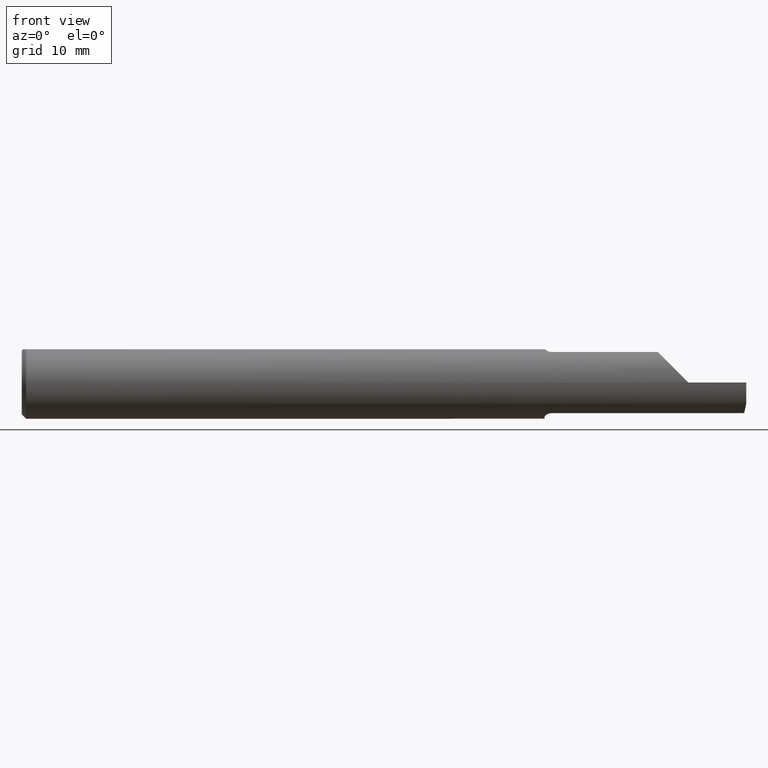
[diagram: clean part render]
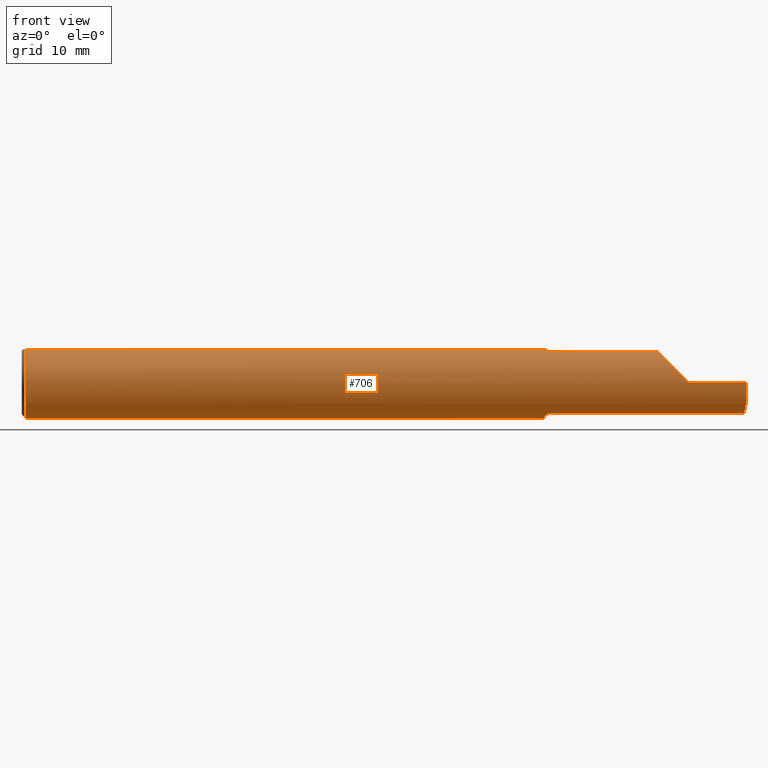
[diagram: same view with one face highlighted and labeled with its STEP entity id]
A machine part, front view. The second image highlights one B-rep face of the part: STEP entity #706.
In plain terms, the highlighted cylindrical surface (edge-blend (fillet) strip) has radius 3.1712 mm, axis along (-1, -0, -0).
Its self-contained STEP definition (entity closure, byte-faithful):
#10 = CARTESIAN_POINT ( 'NONE',  ( 0.01499999999999915637, 0.000000000000000000, 0.000000000000000000 ) ) ;
#26 = CARTESIAN_POINT ( 'NONE',  ( 1.811931173230983072, -0.05931078277131181242, -0.1099137017871685551 ) ) ;
#28 = VERTEX_POINT ( 'NONE', #206 ) ;
#36 = DIRECTION ( 'NONE',  ( -1.000000000000000000, -0.000000000000000000, -0.000000000000000000 ) ) ;
#47 = VERTEX_POINT ( 'NONE', #351 ) ;
#68 = CARTESIAN_POINT ( 'NONE',  ( 0.01499999999999915637, 0.000000000000000000, -0.1248500000000000026 ) ) ;
#77 = CARTESIAN_POINT ( 'NONE',  ( 2.500000000000000000, -0.1027548813330047828, -0.07091513845604555111 ) ) ;
#94 = CARTESIAN_POINT ( 'NONE',  ( 1.806165089549962355, -0.04895916665957456698, 0.1148500000000000076 ) ) ;
#96 = CARTESIAN_POINT ( 'NONE',  ( 2.300000000000000266, -0.1248495094103296982, 0.0003500000000000749148 ) ) ;
#97 = B_SPLINE_CURVE_WITH_KNOTS ( 'NONE', 3,
 ( #348, #614, #283, #752, #226, #94 ),
 .UNSPECIFIED., .F., .F.,
 ( 4, 2, 4 ),
 ( 0.000000000000000000, 0.0004112572997248626011, 0.0008225145994497252023 ),
 .UNSPECIFIED. ) ;
#98 = EDGE_CURVE ( 'NONE', #719, #339, #579, .T. ) ;
#99 = VERTEX_POINT ( 'NONE', #754 ) ;
#112 = EDGE_CURVE ( 'NONE', #99, #339, #204, .T. ) ;
#121 = ORIENTED_EDGE ( 'NONE', *, *, #112, .F. ) ;
#137 = DIRECTION ( 'NONE',  ( 1.000000000000000000, 0.000000000000000000, 0.000000000000000000 ) ) ;
#146 = CIRCLE ( 'NONE', #560, 0.1248500000000000026 ) ;
#148 = CARTESIAN_POINT ( 'NONE',  ( 1.806165089549962355, -0.04895916665957456698, 0.1148500000000000076 ) ) ;
#156 = DIRECTION ( 'NONE',  ( -1.000000000000000000, -0.000000000000000000, -0.000000000000000000 ) ) ;
#158 = CARTESIAN_POINT ( 'NONE',  ( 0.01499999999999915637, 0.04895916665957456698, 0.1148500000000000076 ) ) ;
#165 = CARTESIAN_POINT ( 'NONE',  ( 2.218168021404921753, -0.1036236216557786111, 0.08218197859507844760 ) ) ;
#167 = EDGE_CURVE ( 'NONE', #443, #47, #428, .T. ) ;
#172 = CARTESIAN_POINT ( 'NONE',  ( 1.829000000000000181, -0.06674575881451197401, -0.1055107870327721270 ) ) ;
#173 = AXIS2_PLACEMENT_3D ( 'NONE', #831, #369, #363 ) ;
#174 = CIRCLE ( 'NONE', #173, 0.1248500000000000026 ) ;
#178 = VERTEX_POINT ( 'NONE', #503 ) ;
#180 = ORIENTED_EDGE ( 'NONE', *, *, #527, .F. ) ;
#181 = LINE ( 'NONE', #778, #757 ) ;
#204 = CIRCLE ( 'NONE', #584, 0.1248500000000000026 ) ;
#206 = CARTESIAN_POINT ( 'NONE',  ( 2.194839212967228281, -0.06674575881451201564, 0.1055107870327720992 ) ) ;
#215 = EDGE_CURVE ( 'NONE', #730, #443, #146, .T. ) ;
#218 = CARTESIAN_POINT ( 'NONE',  ( 0.01499999999999914770, -0.04895916665957456698, 0.1148500000000000076 ) ) ;
#226 = CARTESIAN_POINT ( 'NONE',  ( 1.807833696467887163, -0.05373531148618881231, 0.1128139871958513674 ) ) ;
#228 = DIRECTION ( 'NONE',  ( 1.000000000000000000, 0.000000000000000000, 0.000000000000000000 ) ) ;
#230 = LINE ( 'NONE', #703, #744 ) ;
#238 = EDGE_CURVE ( 'NONE', #320, #730, #174, .T. ) ;
#239 = CARTESIAN_POINT ( 'NONE',  ( 1.821166109659049681, -0.06565312228625852509, -0.1062163489814185457 ) ) ;
#244 = ORIENTED_EDGE ( 'NONE', *, *, #574, .T. ) ;
#248 = DIRECTION ( 'NONE',  ( -1.000000000000000000, -0.000000000000000000, -0.000000000000000000 ) ) ;
#255 = CARTESIAN_POINT ( 'NONE',  ( 2.500000000000000000, -0.06674575881451198789, -0.1055107870327721270 ) ) ;
#258 = CARTESIAN_POINT ( 'NONE',  ( 2.492585572526551108, -0.06674575881451198789, -0.1055107870327721270 ) ) ;
#259 = EDGE_CURVE ( 'NONE', #178, #461, #683, .T. ) ;
#260 = B_SPLINE_CURVE_WITH_KNOTS ( 'NONE', 3,
 ( #303, #833, #570, #26, #299, #239, #361, #775 ),
 .UNSPECIFIED., .F., .F.,
 ( 4, 2, 2, 4 ),
 ( 0.000000000000000000, 0.0005958128942917653497, 0.0008937193414376426578, 0.001191625788583520074 ),
 .UNSPECIFIED. ) ;
#262 = CIRCLE ( 'NONE', #771, 0.1248500000000000026 ) ;
#268 = VERTEX_POINT ( 'NONE', #465 ) ;
#269 = CARTESIAN_POINT ( 'NONE',  ( 2.492585572526551108, -0.06674575881451198789, -0.1055107870327721270 ) ) ;
#272 = ORIENTED_EDGE ( 'NONE', *, *, #637, .T. ) ;
#276 = CYLINDRICAL_SURFACE ( 'NONE', #447, 0.1248500000000000026 ) ;
#283 = CARTESIAN_POINT ( 'NONE',  ( 1.818295400938419126, -0.06462416334000620211, 0.1068895594202840249 ) ) ;
#285 = CARTESIAN_POINT ( 'NONE',  ( 2.494944802869536904, -0.08100450677091579343, -0.09649075241015638016 ) ) ;
#296 = CARTESIAN_POINT ( 'NONE',  ( 2.256362915931965585, -0.1247271782974887638, 0.04398708406803453902 ) ) ;
#299 = CARTESIAN_POINT ( 'NONE',  ( 1.814619184248488670, -0.06191677978697745360, -0.1084368831979592024 ) ) ;
#303 = CARTESIAN_POINT ( 'NONE',  ( 1.804000000000000270, -0.03544785385794579219, -0.1197120384792846048 ) ) ;
#320 = VERTEX_POINT ( 'NONE', #218 ) ;
#324 = VERTEX_POINT ( 'NONE', #756 ) ;
#325 = VERTEX_POINT ( 'NONE', #148 ) ;
#339 = VERTEX_POINT ( 'NONE', #77 ) ;
#348 = CARTESIAN_POINT ( 'NONE',  ( 1.829000000000000181, -0.06674575881451197401, 0.1055107870327721270 ) ) ;
#351 = CARTESIAN_POINT ( 'NONE',  ( 1.804000000000000270, 0.04895916665957456698, 0.1148500000000000076 ) ) ;
#361 = CARTESIAN_POINT ( 'NONE',  ( 1.825021003568511269, -0.06674575881451201564, -0.1055107870327721409 ) ) ;
#363 = DIRECTION ( 'NONE',  ( 0.000000000000000000, 0.000000000000000000, -1.000000000000000000 ) ) ;
#369 = DIRECTION ( 'NONE',  ( 1.000000000000000000, -0.000000000000000000, -0.000000000000000000 ) ) ;
#392 = ORIENTED_EDGE ( 'NONE', *, *, #840, .F. ) ;
#396 = EDGE_CURVE ( 'NONE', #268, #325, #97, .T. ) ;
#403 = EDGE_LOOP ( 'NONE', ( #862, #511, #121, #244, #592, #782, #540, #595, #272, #807, #875, #792, #392, #524, #180 ) ) ;
#408 = VECTOR ( 'NONE', #36, 39.37007874015748143 ) ;
#416 = DIRECTION ( 'NONE',  ( 0.000000000000000000, 0.000000000000000000, -1.000000000000000000 ) ) ;
#428 = LINE ( 'NONE', #432, #851 ) ;
#432 = CARTESIAN_POINT ( 'NONE',  ( 2.500000000000000000, 0.04895916665957456698, 0.1148500000000000076 ) ) ;
#436 = DIRECTION ( 'NONE',  ( 0.000000000000000000, 0.000000000000000000, -1.000000000000000000 ) ) ;
#440 = DIRECTION ( 'NONE',  ( 1.000000000000000000, -0.000000000000000000, -0.000000000000000000 ) ) ;
#443 = VERTEX_POINT ( 'NONE', #158 ) ;
#444 = CARTESIAN_POINT ( 'NONE',  ( 2.069000000000000394, -0.06674575881451197401, -0.1055107870327721270 ) ) ;
#447 = AXIS2_PLACEMENT_3D ( 'NONE', #545, #593, #541 ) ;
#453 = EDGE_CURVE ( 'NONE', #461, #28, #692, .T. ) ;
#460 = EDGE_CURVE ( 'NONE', #741, #520, #260, .T. ) ;
#461 = VERTEX_POINT ( 'NONE', #96 ) ;
#465 = CARTESIAN_POINT ( 'NONE',  ( 1.829000000000000181, -0.06674575881451197401, 0.1055107870327721270 ) ) ;
#493 = CARTESIAN_POINT ( 'NONE',  ( 1.804000000000000270, -0.03544785385794579219, -0.1197120384792846048 ) ) ;
#496 = VECTOR ( 'NONE', #248, 39.37007874015748143 ) ;
#502 = DIRECTION ( 'NONE',  ( 1.000000000000000000, 0.000000000000000000, 0.000000000000000000 ) ) ;
#503 = CARTESIAN_POINT ( 'NONE',  ( 2.300000000000000266, -0.1248500000000000026, -2.465075339897404302E-17 ) ) ;
#511 = ORIENTED_EDGE ( 'NONE', *, *, #98, .T. ) ;
#520 = VERTEX_POINT ( 'NONE', #172 ) ;
#521 = DIRECTION ( 'NONE',  ( -1.000000000000000000, -0.000000000000000000, -0.000000000000000000 ) ) ;
#524 = ORIENTED_EDGE ( 'NONE', *, *, #460, .T. ) ;
#527 = EDGE_CURVE ( 'NONE', #324, #520, #845, .T. ) ;
#540 = ORIENTED_EDGE ( 'NONE', *, *, #776, .F. ) ;
#541 = DIRECTION ( 'NONE',  ( 0.000000000000000000, 0.000000000000000000, 1.000000000000000000 ) ) ;
#544 = CARTESIAN_POINT ( 'NONE',  ( 2.500000000000000000, 0.000000000000000000, 0.000000000000000000 ) ) ;
#545 = CARTESIAN_POINT ( 'NONE',  ( 2.500000000000000000, 0.000000000000000000, 0.000000000000000000 ) ) ;
#555 = EDGE_CURVE ( 'NONE', #719, #324, #859, .T. ) ;
#560 = AXIS2_PLACEMENT_3D ( 'NONE', #10, #440, #436 ) ;
#565 = DIRECTION ( 'NONE',  ( 1.000000000000000000, 0.000000000000000000, 0.000000000000000000 ) ) ;
#568 = CARTESIAN_POINT ( 'NONE',  ( 1.804000000000000270, 0.000000000000000000, 0.000000000000000000 ) ) ;
#570 = CARTESIAN_POINT ( 'NONE',  ( 1.805717012709729064, -0.05032294001735268529, -0.1144560936867379808 ) ) ;
#574 = EDGE_CURVE ( 'NONE', #99, #178, #181, .T. ) ;
#579 =( BOUNDED_CURVE ( )  B_SPLINE_CURVE ( 3, ( #269, #285, #813, #747 ),
 .UNSPECIFIED., .F., .F. ) 
 B_SPLINE_CURVE_WITH_KNOTS ( ( 4, 4 ),
 ( 1.181333927195138411, 1.584009842849273486 ),
 .UNSPECIFIED. ) 
 CURVE ( )  GEOMETRIC_REPRESENTATION_ITEM ( )  RATIONAL_B_SPLINE_CURVE ( ( 1.000000000000000000, 0.9865332596737929061, 0.9865332596737929061, 1.000000000000000000 ) ) 
 REPRESENTATION_ITEM ( '' )  );
#584 = AXIS2_PLACEMENT_3D ( 'NONE', #544, #137, #416 ) ;
#585 = DIRECTION ( 'NONE',  ( -1.000000000000000000, -0.000000000000000000, -0.000000000000000000 ) ) ;
#592 = ORIENTED_EDGE ( 'NONE', *, *, #259, .T. ) ;
#593 = DIRECTION ( 'NONE',  ( -1.000000000000000000, -0.000000000000000000, -0.000000000000000000 ) ) ;
#595 = ORIENTED_EDGE ( 'NONE', *, *, #396, .T. ) ;
#614 = CARTESIAN_POINT ( 'NONE',  ( 1.823512926777241860, -0.06674575881451197401, 0.1055107870327721131 ) ) ;
#637 = EDGE_CURVE ( 'NONE', #325, #320, #644, .T. ) ;
#644 = LINE ( 'NONE', #850, #496 ) ;
#666 = FACE_OUTER_BOUND ( 'NONE', #403, .T. ) ;
#683 = CIRCLE ( 'NONE', #814, 0.1248500000000000026 ) ;
#692 =( BOUNDED_CURVE ( )  B_SPLINE_CURVE ( 3, ( #839, #296, #165, #762 ),
 .UNSPECIFIED., .F., .F. ) 
 B_SPLINE_CURVE_WITH_KNOTS ( ( 4, 4 ),
 ( 4.715192348093417252, 5.719141952225705872 ),
 .UNSPECIFIED. ) 
 CURVE ( )  GEOMETRIC_REPRESENTATION_ITEM ( )  RATIONAL_B_SPLINE_CURVE ( ( 1.000000000000000000, 0.9177560538299422976, 0.9177560538299422976, 1.000000000000000000 ) ) 
 REPRESENTATION_ITEM ( '' )  );
#699 = DIRECTION ( 'NONE',  ( 0.000000000000000000, 0.000000000000000000, -1.000000000000000000 ) ) ;
#703 = CARTESIAN_POINT ( 'NONE',  ( 2.069000000000000394, -0.06674575881451197401, 0.1055107870327721270 ) ) ;
#706 = ADVANCED_FACE ( 'NONE', ( #666 ), #276, .T. ) ;
#719 = VERTEX_POINT ( 'NONE', #258 ) ;
#730 = VERTEX_POINT ( 'NONE', #68 ) ;
#741 = VERTEX_POINT ( 'NONE', #493 ) ;
#744 = VECTOR ( 'NONE', #502, 39.37007874015748143 ) ;
#747 = CARTESIAN_POINT ( 'NONE',  ( 2.500000000000000000, -0.1027548813330047828, -0.07091513845604555111 ) ) ;
#752 = CARTESIAN_POINT ( 'NONE',  ( 1.810521963996438277, -0.05807460526863036238, 0.1105848119017751735 ) ) ;
#754 = CARTESIAN_POINT ( 'NONE',  ( 2.500000000000000000, -0.1248500000000000026, -2.465075339897404302E-17 ) ) ;
#756 = CARTESIAN_POINT ( 'NONE',  ( 2.346311322083690420, -0.06674575881451198789, -0.1055107870327721270 ) ) ;
#757 = VECTOR ( 'NONE', #521, 39.37007874015748143 ) ;
#762 = CARTESIAN_POINT ( 'NONE',  ( 2.194839212967228281, -0.06674575881451201564, 0.1055107870327720992 ) ) ;
#764 = CARTESIAN_POINT ( 'NONE',  ( 2.300000000000000266, 0.000000000000000000, 0.000000000000000000 ) ) ;
#771 = AXIS2_PLACEMENT_3D ( 'NONE', #568, #565, #699 ) ;
#775 = CARTESIAN_POINT ( 'NONE',  ( 1.829000000000000181, -0.06674575881451197401, -0.1055107870327721270 ) ) ;
#776 = EDGE_CURVE ( 'NONE', #268, #28, #230, .T. ) ;
#778 = CARTESIAN_POINT ( 'NONE',  ( 2.500000000000000000, -0.1248500000000000026, -2.465075339897404302E-17 ) ) ;
#782 = ORIENTED_EDGE ( 'NONE', *, *, #453, .T. ) ;
#792 = ORIENTED_EDGE ( 'NONE', *, *, #167, .T. ) ;
#807 = ORIENTED_EDGE ( 'NONE', *, *, #238, .T. ) ;
#813 = CARTESIAN_POINT ( 'NONE',  ( 2.497450015745279028, -0.09317139594753265364, -0.08480145278864945069 ) ) ;
#814 = AXIS2_PLACEMENT_3D ( 'NONE', #764, #156, #835 ) ;
#831 = CARTESIAN_POINT ( 'NONE',  ( 0.01499999999999915637, 0.000000000000000000, 0.000000000000000000 ) ) ;
#833 = CARTESIAN_POINT ( 'NONE',  ( 1.804000000000000492, -0.04301706023810924345, -0.1174707257007782807 ) ) ;
#835 = DIRECTION ( 'NONE',  ( 0.000000000000000000, 0.000000000000000000, 1.000000000000000000 ) ) ;
#839 = CARTESIAN_POINT ( 'NONE',  ( 2.300000000000000266, -0.1248495094103296982, 0.0003500000000000749148 ) ) ;
#840 = EDGE_CURVE ( 'NONE', #741, #47, #262, .T. ) ;
#841 = VECTOR ( 'NONE', #585, 39.37007874015748143 ) ;
#845 = LINE ( 'NONE', #444, #841 ) ;
#850 = CARTESIAN_POINT ( 'NONE',  ( 2.500000000000000000, -0.04895916665957456698, 0.1148500000000000076 ) ) ;
#851 = VECTOR ( 'NONE', #228, 39.37007874015748143 ) ;
#859 = LINE ( 'NONE', #255, #408 ) ;
#862 = ORIENTED_EDGE ( 'NONE', *, *, #555, .F. ) ;
#875 = ORIENTED_EDGE ( 'NONE', *, *, #215, .T. ) ;